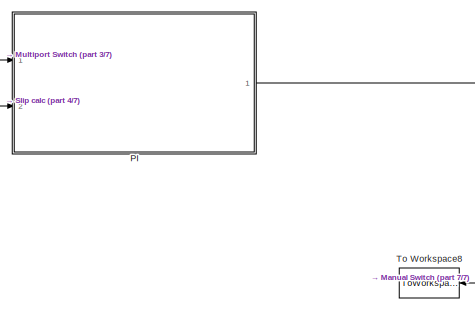
[diagram: root canvas - part 1/7, top right region]
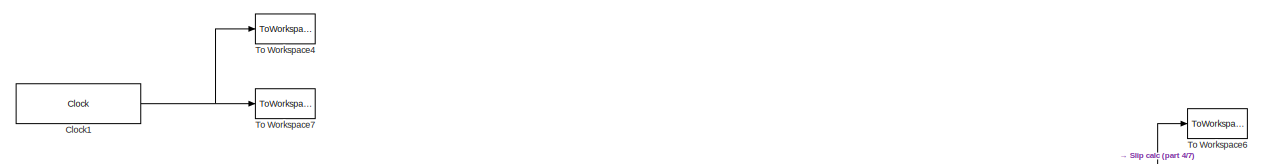
[diagram: root canvas - part 2/7, top center region]
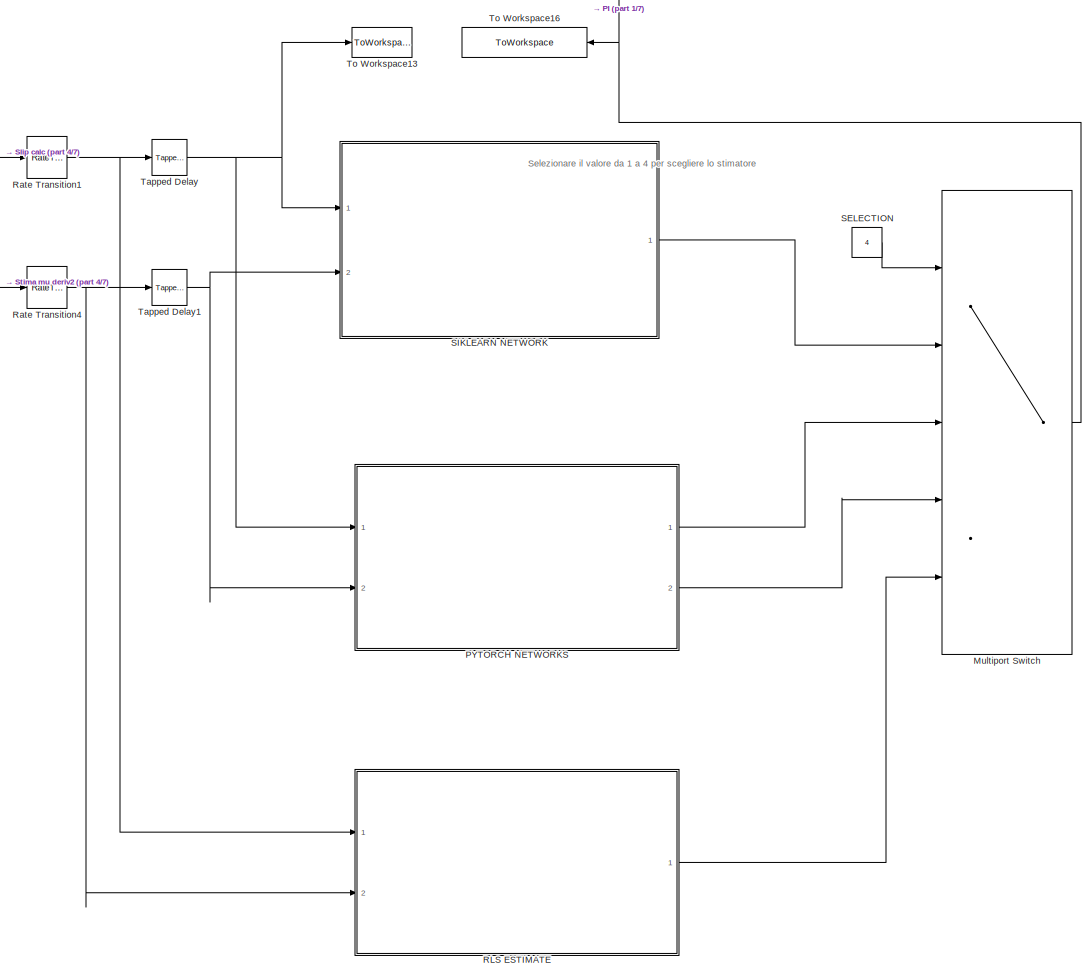
[diagram: root canvas - part 3/7, middle right region]
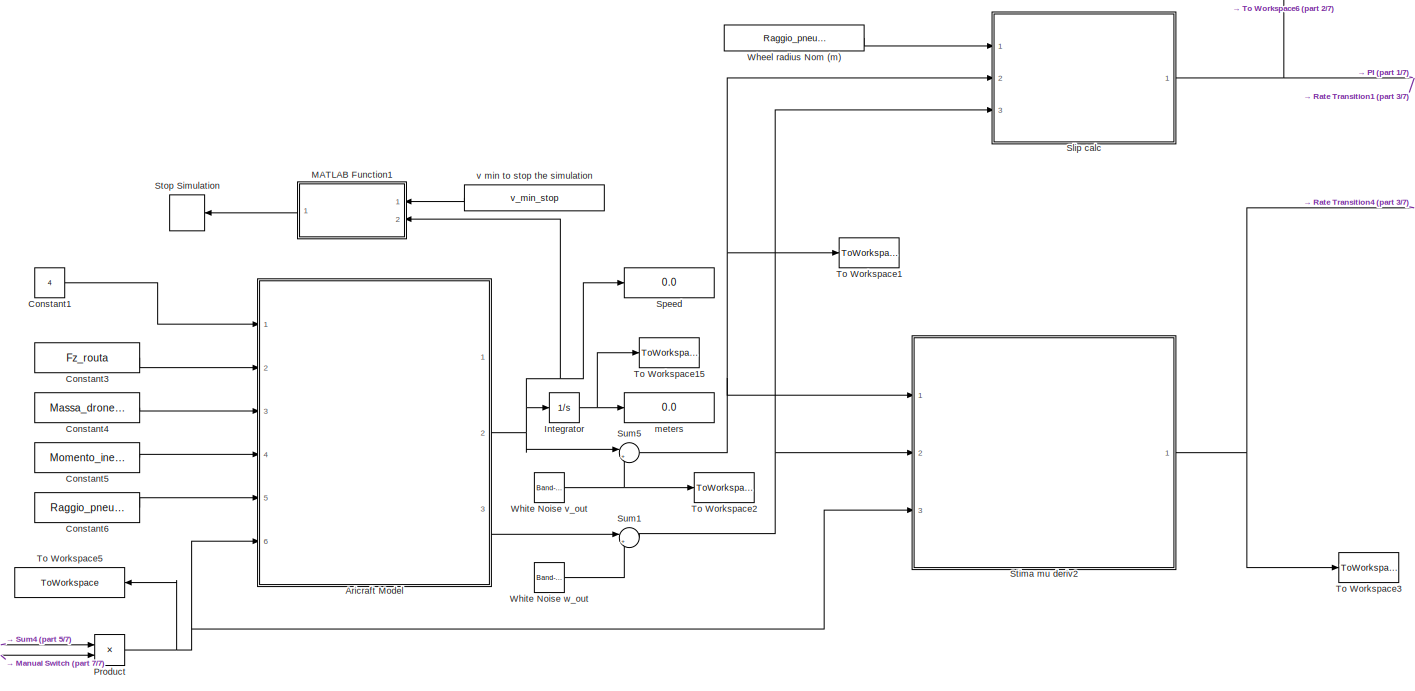
[diagram: root canvas - part 4/7, central region]
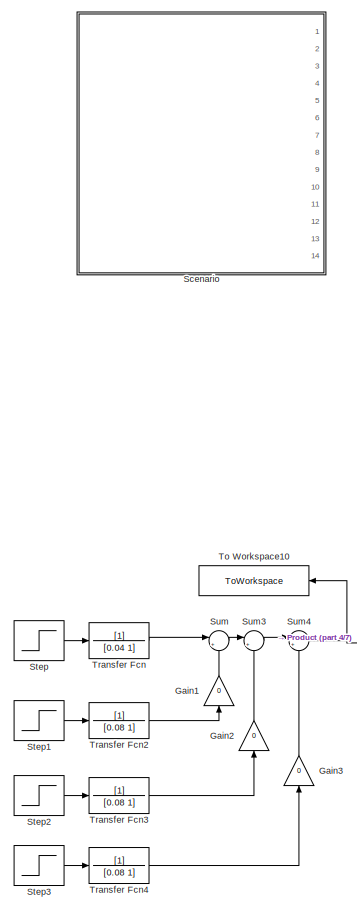
[diagram: root canvas - part 5/7, middle left region]
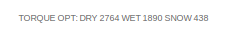
[diagram: root canvas - part 6/7, middle left region]
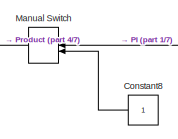
[diagram: root canvas - part 7/7, bottom left region]
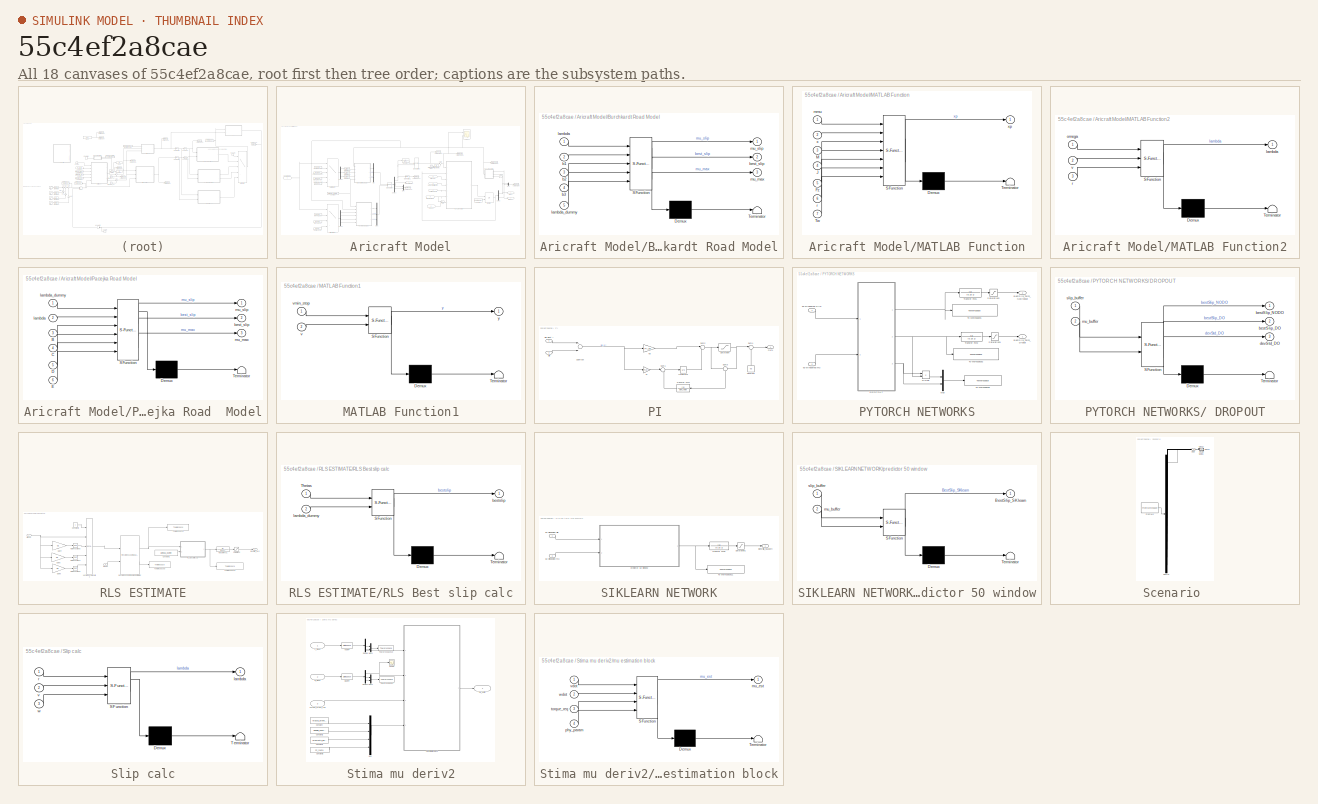
[diagram: thumbnail index - all 18 canvases of the model, root first then tree order]
MODEL slx_55c4ef2a8cae
KIND model
CONFIG AbsTol = auto
CONFIG EnableMultiTasking = on
CONFIG FixedStep = 1e-6
CONFIG InitFcn = clear all\nclose all\nVariables_Journal2022\n
CONFIG MaxStep = auto
CONFIG MinStep = 1e-3
CONFIG PreLoadFcn = if count(py.sys.path,'') == 0\ninsert(py.sys.path,int32(0),'');\nend
CONFIG RelTol = 1e-3
CONFIG SampleTimeConstraint = Unconstrained
CONFIG Solver = VariableStepAuto
CONFIG SolverName = VariableStepAuto
CONFIG StartTime = 0.0
CONFIG StopFcn = %Figures_Test_Pytorch_simulink
CONFIG StopTime = 20
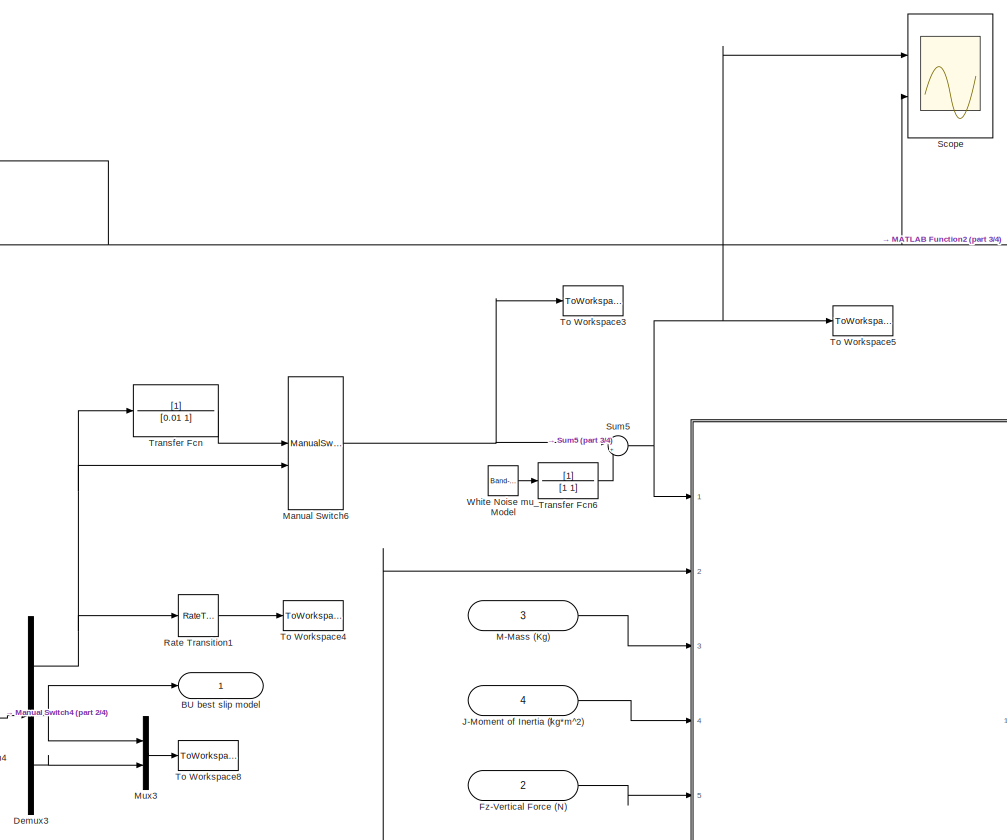
[diagram: Aricraft Model - part 1/4, top center region]
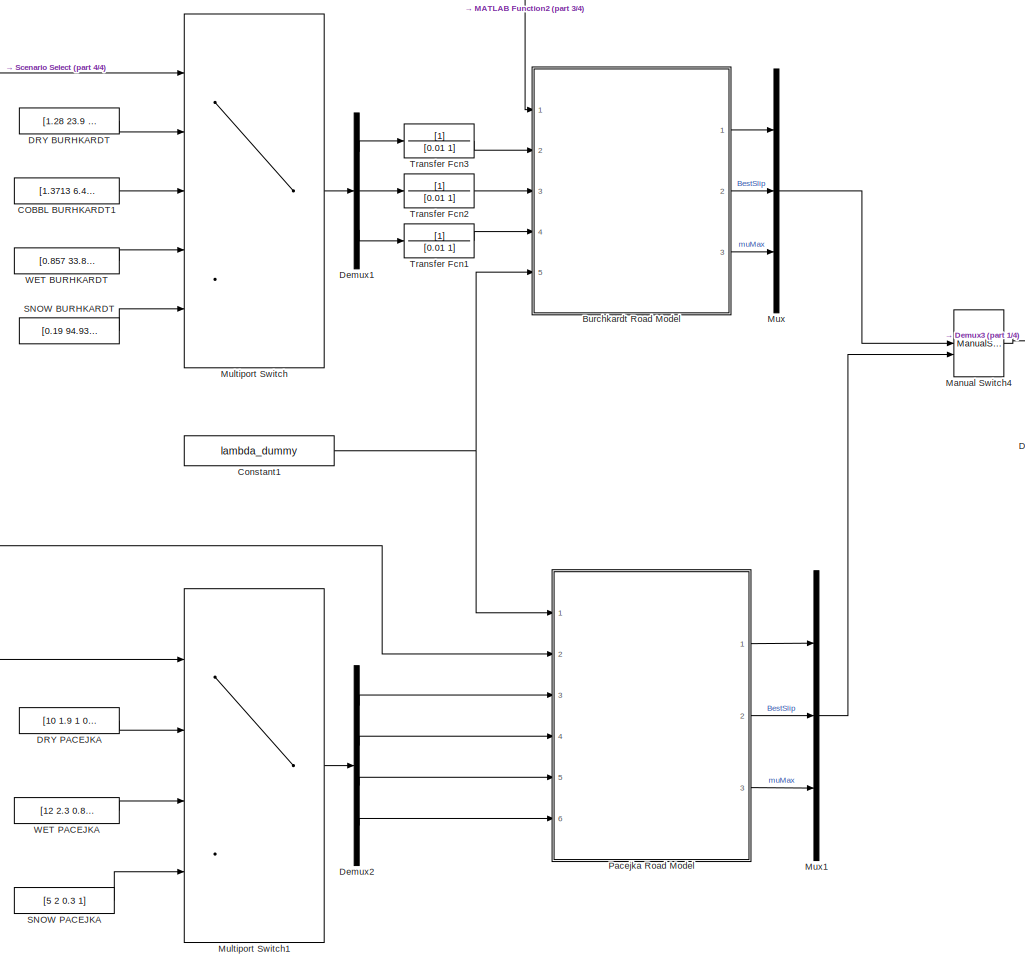
[diagram: Aricraft Model - part 2/4, middle left region]
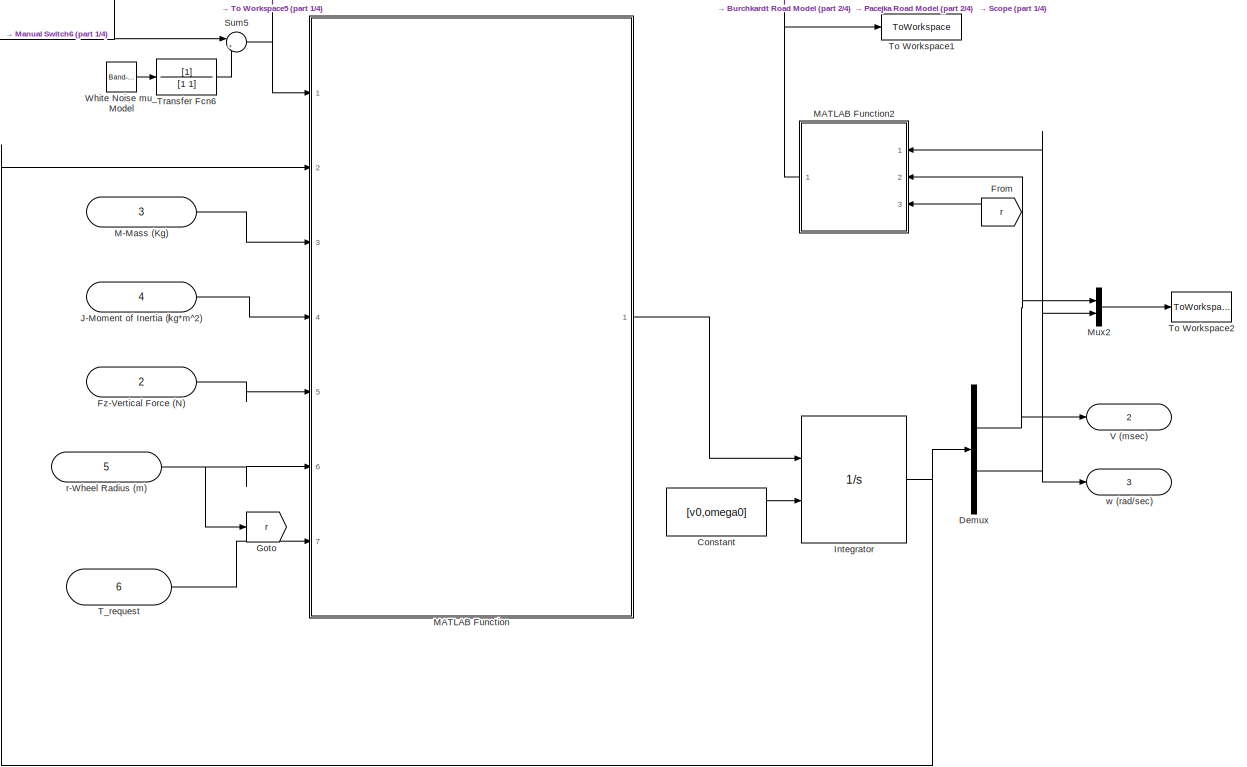
[diagram: Aricraft Model - part 3/4, middle right region]
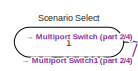
[diagram: Aricraft Model - part 4/4, middle left region]
BLOCK [SubSystem] Aricraft Model
  Ports = [6, 3]
  RequestExecContextInheritance = off
BLOCK [Inport] Aricraft Model/ M-Mass (Kg)
  IconDisplay = Port number
  Port = 3
BLOCK [Outport] Aricraft Model/BU best slip model
  IconDisplay = Port number
BLOCK [SubSystem] Aricraft Model/Burchkardt Road Model
  ErrorFcn = Stateflow.Translate.translate
  PermitHierarchicalResolution = ExplicitOnly
  Ports = [5, 3]
  RequestExecContextInheritance = off
  SFBlockType = MATLAB Function
  TreatAsAtomicUnit = on
BLOCK [Demux] Aricraft Model/Burchkardt Road Model/ Demux 
  Outputs = 1
  Ports = [1, 1]
BLOCK [S-Function] Aricraft Model/Burchkardt Road Model/ SFunction 
  EnableBusSupport = on
  FunctionName = sf_sfun
  PortCounts = [5 4]
  Ports = [5, 4]
  SFcnIsStateOwnerBlock = off
  SFunctionDeploymentMode = off
  Tag = Stateflow S-Function Journal2022 7
BLOCK [Terminator] Aricraft Model/Burchkardt Road Model/ Terminator 
BLOCK [Inport] Aricraft Model/Burchkardt Road Model/b1
  IconDisplay = Port number
  Port = 2
BLOCK [Inport] Aricraft Model/Burchkardt Road Model/b2
  IconDisplay = Port number
  Port = 3
BLOCK [Inport] Aricraft Model/Burchkardt Road Model/b3
  IconDisplay = Port number
  Port = 4
BLOCK [Outport] Aricraft Model/Burchkardt Road Model/best_slip
  IconDisplay = Port number
  Port = 2
BLOCK [Inport] Aricraft Model/Burchkardt Road Model/lambda
  IconDisplay = Port number
BLOCK [Inport] Aricraft Model/Burchkardt Road Model/lambda_dummy
  IconDisplay = Port number
  Port = 5
BLOCK [Outport] Aricraft Model/Burchkardt Road Model/mu_max
  IconDisplay = Port number
  Port = 3
BLOCK [Outport] Aricraft Model/Burchkardt Road Model/mu_slip
  IconDisplay = Port number
BLOCK [Constant] Aricraft Model/COBBL BURHKARDT1
  Value = [1.3713 6.4565 0.6691]
BLOCK [Constant] Aricraft Model/Constant
  Value = [v0,omega0]
BLOCK [Constant] Aricraft Model/Constant1
  Value = lambda_dummy
BLOCK [Constant] Aricraft Model/DRY BURHKARDT
  Value = [1.28 23.9 0.52]
BLOCK [Constant] Aricraft Model/DRY PACEJKA
  Value = [10 1.9 1 0.97]
BLOCK [Demux] Aricraft Model/Demux
  DisplayOption = bar
  Outputs = 2
  Ports = [1, 2]
BLOCK [Demux] Aricraft Model/Demux1
  DisplayOption = bar
  Outputs = 3
  Ports = [1, 3]
BLOCK [Demux] Aricraft Model/Demux2
  DisplayOption = bar
  Ports = [1, 4]
BLOCK [Demux] Aricraft Model/Demux3
  DisplayOption = bar
  Outputs = 3
  Ports = [1, 3]
BLOCK [From] Aricraft Model/From
  GotoTag = r
BLOCK [Inport] Aricraft Model/Fz-Vertical Force (N)
  IconDisplay = Port number
  Port = 2
BLOCK [Goto] Aricraft Model/Goto
  GotoTag = r
BLOCK [Integrator] Aricraft Model/Integrator
  InitialCondition = [v0,omega0]
  InitialConditionSource = external
  LimitOutput = on
  LowerSaturationLimit = 0
  Ports = [2, 1]
BLOCK [Inport] Aricraft Model/J-Moment of Inertia (‎kg*m^2)
  IconDisplay = Port number
  Port = 4
BLOCK [SubSystem] Aricraft Model/MATLAB Function
  ErrorFcn = Stateflow.Translate.translate
  PermitHierarchicalResolution = ExplicitOnly
  Ports = [7, 1]
  RequestExecContextInheritance = off
  SFBlockType = MATLAB Function
  TreatAsAtomicUnit = on
BLOCK [Demux] Aricraft Model/MATLAB Function/ Demux 
  Outputs = 1
  Ports = [1, 1]
BLOCK [S-Function] Aricraft Model/MATLAB Function/ SFunction 
  EnableBusSupport = on
  FunctionName = sf_sfun
  PortCounts = [7 2]
  Ports = [7, 2]
  SFcnIsStateOwnerBlock = off
  SFunctionDeploymentMode = off
  Tag = Stateflow S-Function Journal2022 2
BLOCK [Terminator] Aricraft Model/MATLAB Function/ Terminator 
BLOCK [Inport] Aricraft Model/MATLAB Function/Fz
  IconDisplay = Port number
  Port = 5
BLOCK [Inport] Aricraft Model/MATLAB Function/J
  IconDisplay = Port number
  Port = 4
BLOCK [Inport] Aricraft Model/MATLAB Function/M
  IconDisplay = Port number
  Port = 3
BLOCK [Inport] Aricraft Model/MATLAB Function/Tw
  IconDisplay = Port number
  Port = 7
BLOCK [Inport] Aricraft Model/MATLAB Function/mmu
  IconDisplay = Port number
BLOCK [Inport] Aricraft Model/MATLAB Function/r
  IconDisplay = Port number
  Port = 6
BLOCK [Inport] Aricraft Model/MATLAB Function/x
  IconDisplay = Port number
  Port = 2
BLOCK [Outport] Aricraft Model/MATLAB Function/xp
  IconDisplay = Port number
BLOCK [SubSystem] Aricraft Model/MATLAB Function2
  ErrorFcn = Stateflow.Translate.translate
  PermitHierarchicalResolution = ExplicitOnly
  Ports = [3, 1]
  RequestExecContextInheritance = off
  SFBlockType = MATLAB Function
  TreatAsAtomicUnit = on
BLOCK [Demux] Aricraft Model/MATLAB Function2/ Demux 
  Outputs = 1
  Ports = [1, 1]
BLOCK [S-Function] Aricraft Model/MATLAB Function2/ SFunction 
  EnableBusSupport = on
  FunctionName = sf_sfun
  PortCounts = [3 2]
  Ports = [3, 2]
  SFcnIsStateOwnerBlock = off
  SFunctionDeploymentMode = off
  Tag = Stateflow S-Function Journal2022 9
BLOCK [Terminator] Aricraft Model/MATLAB Function2/ Terminator 
BLOCK [Outport] Aricraft Model/MATLAB Function2/lambda
  IconDisplay = Port number
BLOCK [Inport] Aricraft Model/MATLAB Function2/omega
  IconDisplay = Port number
BLOCK [Inport] Aricraft Model/MATLAB Function2/r
  IconDisplay = Port number
  Port = 3
BLOCK [Inport] Aricraft Model/MATLAB Function2/v
  IconDisplay = Port number
  Port = 2
BLOCK [ManualSwitch] Aricraft Model/Manual Switch4
BLOCK [ManualSwitch] Aricraft Model/Manual Switch6
  CurrentSetting = 0
BLOCK [MultiPortSwitch] Aricraft Model/Multiport Switch
  DataPortIndices = {1,2,3,4}
  DataPortOrder = Specify indices
  DiagnosticForDefault = None
  InputSameDT = off
  Inputs = 4
  Ports = [5, 1]
  SaturateOnIntegerOverflow = off
BLOCK [MultiPortSwitch] Aricraft Model/Multiport Switch1
  DataPortOrder = Specify indices
  DiagnosticForDefault = None
  InputSameDT = off
  Inputs = 4
  Ports = [4, 1]
  SaturateOnIntegerOverflow = off
BLOCK [Mux] Aricraft Model/Mux
  DisplayOption = bar
  Inputs = 3
  Ports = [3, 1]
BLOCK [Mux] Aricraft Model/Mux1
  DisplayOption = bar
  Inputs = 3
  Ports = [3, 1]
BLOCK [Mux] Aricraft Model/Mux2
  DisplayOption = bar
  Inputs = 2
  Ports = [2, 1]
BLOCK [Mux] Aricraft Model/Mux3
  DisplayOption = bar
  Inputs = 2
  Ports = [2, 1]
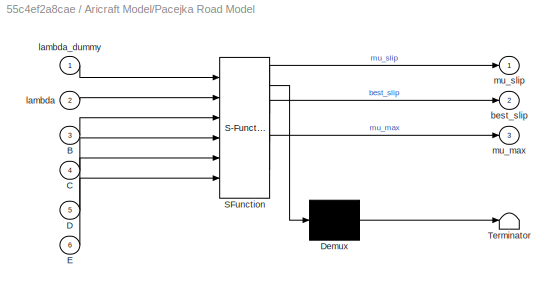
BLOCK [SubSystem] Aricraft Model/Pacejka Road  Model
  ErrorFcn = Stateflow.Translate.translate
  PermitHierarchicalResolution = ExplicitOnly
  Ports = [6, 3]
  RequestExecContextInheritance = off
  SFBlockType = MATLAB Function
  TreatAsAtomicUnit = on
BLOCK [Demux] Aricraft Model/Pacejka Road  Model/ Demux 
  Outputs = 1
  Ports = [1, 1]
BLOCK [S-Function] Aricraft Model/Pacejka Road  Model/ SFunction 
  EnableBusSupport = on
  FunctionName = sf_sfun
  PortCounts = [6 4]
  Ports = [6, 4]
  SFcnIsStateOwnerBlock = off
  SFunctionDeploymentMode = off
  Tag = Stateflow S-Function Journal2022 8
BLOCK [Terminator] Aricraft Model/Pacejka Road  Model/ Terminator 
BLOCK [Inport] Aricraft Model/Pacejka Road  Model/B
  IconDisplay = Port number
  Port = 3
BLOCK [Inport] Aricraft Model/Pacejka Road  Model/C
  IconDisplay = Port number
  Port = 4
BLOCK [Inport] Aricraft Model/Pacejka Road  Model/D
  IconDisplay = Port number
  Port = 5
BLOCK [Inport] Aricraft Model/Pacejka Road  Model/E
  IconDisplay = Port number
  Port = 6
BLOCK [Outport] Aricraft Model/Pacejka Road  Model/best_slip
  IconDisplay = Port number
  Port = 2
BLOCK [Inport] Aricraft Model/Pacejka Road  Model/lambda
  IconDisplay = Port number
  Port = 2
BLOCK [Inport] Aricraft Model/Pacejka Road  Model/lambda_dummy
  IconDisplay = Port number
BLOCK [Outport] Aricraft Model/Pacejka Road  Model/mu_max
  IconDisplay = Port number
  Port = 3
BLOCK [Outport] Aricraft Model/Pacejka Road  Model/mu_slip
  IconDisplay = Port number
BLOCK [RateTransition] Aricraft Model/Rate Transition1
  OutPortSampleTime = ML_sample_time
BLOCK [Constant] Aricraft Model/SNOW BURHKARDT
  Value = [0.19 94.93 0.06]
BLOCK [Constant] Aricraft Model/SNOW PACEJKA
  Value = [5 2 0.3 1]
BLOCK [Inport] Aricraft Model/Scenario Select 
  IconDisplay = Port number
BLOCK [Scope] Aricraft Model/Scope
  Floating = off
  NumInputPorts = 2
  Ports = [2]
  ScopeSpecificationString = Simulink.scopes.TimeScopeBlockCfg('CurrentConfiguration', extmgr.ConfigurationSet(extmgr.Configuration('Core','General UI',true),extmgr.Configuration('Core','Source UI',true),extmgr.Configuration('Sources','WiredSimulink',true),extmgr.Configuration('Visuals','Time Domain',true,'SerializedDisplays',{struct('MinYLimReal','-0.931','MaxYLimReal','1.40308','YLabelReal','','MinYLimMag','0.00000','MaxYLi...<+1374ch>
BLOCK [Sum] Aricraft Model/Sum5
  IconShape = round
  InputSameDT = off
  Inputs = |++
  OutDataTypeStr = Inherit: Inherit via internal rule
  Ports = [2, 1]
  SaturateOnIntegerOverflow = off
BLOCK [Inport] Aricraft Model/T_request
  IconDisplay = Port number
  Port = 6
BLOCK [ToWorkspace] Aricraft Model/To Workspace1
  FixptAsFi = on
  MaxDataPoints = inf
  Ports = [1]
  SampleTime = -1
  Save2DSignal = 3-D array (concatenate along third dimension)
  VariableName = lambda_model
BLOCK [ToWorkspace] Aricraft Model/To Workspace2
  FixptAsFi = on
  MaxDataPoints = inf
  Ports = [1]
  SampleTime = -1
  Save2DSignal = 3-D array (concatenate along third dimension)
  VariableName = speed
BLOCK [ToWorkspace] Aricraft Model/To Workspace3
  FixptAsFi = on
  MaxDataPoints = inf
  Ports = [1]
  SampleTime = -1
  Save2DSignal = 3-D array (concatenate along third dimension)
  VariableName = mu_model1
BLOCK [ToWorkspace] Aricraft Model/To Workspace4
  FixptAsFi = on
  MaxDataPoints = inf
  Ports = [1]
  SampleTime = -1
  Save2DSignal = 3-D array (concatenate along third dimension)
  VariableName = best_slip_GT
BLOCK [ToWorkspace] Aricraft Model/To Workspace5
  FixptAsFi = on
  MaxDataPoints = inf
  Ports = [1]
  SampleTime = -1
  Save2DSignal = 3-D array (concatenate along third dimension)
  VariableName = mu_model
BLOCK [ToWorkspace] Aricraft Model/To Workspace8
  FixptAsFi = on
  MaxDataPoints = inf
  Ports = [1]
  SampleTime = -1
  Save2DSignal = 3-D array (concatenate along third dimension)
  VariableName = MaxT
BLOCK [TransferFcn] Aricraft Model/Transfer Fcn
  Denominator = [0.01 1]
BLOCK [TransferFcn] Aricraft Model/Transfer Fcn1
  Denominator = [0.01 1]
BLOCK [TransferFcn] Aricraft Model/Transfer Fcn2
  Denominator = [0.01 1]
BLOCK [TransferFcn] Aricraft Model/Transfer Fcn3
  Denominator = [0.01 1]
BLOCK [TransferFcn] Aricraft Model/Transfer Fcn6
  Denominator = [1 1]
BLOCK [Outport] Aricraft Model/V (msec)
  IconDisplay = Port number
  Port = 2
BLOCK [Constant] Aricraft Model/WET BURHKARDT
  Value = [0.857 33.822 0.347]
BLOCK [Constant] Aricraft Model/WET PACEJKA
  Value = [12 2.3 0.82 1]
BLOCK [Reference] Aricraft Model/White Noise mu_Model   REF=simulink/Sources/Band-Limited
White Noise
  Ports = [0, 1]
  SourceBlock = simulink/Sources/Band-Limited\nWhite Noise
  SourceProductBaseCode = SL
  SourceProductName = Simulink
  SourceType = Band-Limited White Noise.
BLOCK [Inport] Aricraft Model/r-Wheel Radius (m)
  IconDisplay = Port number
  Port = 5
BLOCK [Outport] Aricraft Model/w (rad//sec)
  IconDisplay = Port number
  Port = 3
BLOCK [Clock] Clock1
  DisplayTime = on
BLOCK [Constant] Constant1
  Value = 4
BLOCK [Constant] Constant3
  Value = Fz_routa
BLOCK [Constant] Constant4
  Value = Massa_drone_eq
BLOCK [Constant] Constant5
  Value = Momento_inerzia
BLOCK [Constant] Constant6
  Value = Raggio_pneumatico
BLOCK [Constant] Constant8
BLOCK [Gain] Gain1
  Gain = 0
  OutDataTypeStr = Inherit: Inherit via internal rule
  ParamDataTypeStr = Inherit: Inherit via internal rule
  SaturateOnIntegerOverflow = off
BLOCK [Gain] Gain2
  Gain = 0
  OutDataTypeStr = Inherit: Inherit via internal rule
  ParamDataTypeStr = Inherit: Inherit via internal rule
  SaturateOnIntegerOverflow = off
BLOCK [Gain] Gain3
  Gain = 0
  OutDataTypeStr = Inherit: Inherit via internal rule
  ParamDataTypeStr = Inherit: Inherit via internal rule
  SaturateOnIntegerOverflow = off
BLOCK [Integrator] Integrator
  Ports = [1, 1]
BLOCK [SubSystem] MATLAB Function1
  ErrorFcn = Stateflow.Translate.translate
  PermitHierarchicalResolution = ExplicitOnly
  Ports = [2, 1]
  RequestExecContextInheritance = off
  SFBlockType = MATLAB Function
  TreatAsAtomicUnit = on
BLOCK [Demux] MATLAB Function1/ Demux 
  Outputs = 1
  Ports = [1, 1]
BLOCK [S-Function] MATLAB Function1/ SFunction 
  EnableBusSupport = on
  FunctionName = sf_sfun
  PortCounts = [2 2]
  Ports = [2, 2]
  SFcnIsStateOwnerBlock = off
  SFunctionDeploymentMode = off
  Tag = Stateflow S-Function Journal2022 5
BLOCK [Terminator] MATLAB Function1/ Terminator 
BLOCK [Inport] MATLAB Function1/v
  IconDisplay = Port number
  Port = 2
BLOCK [Inport] MATLAB Function1/vmin_stop
  IconDisplay = Port number
BLOCK [Outport] MATLAB Function1/y
  IconDisplay = Port number
BLOCK [ManualSwitch] Manual Switch
BLOCK [MultiPortSwitch] Multiport Switch
  DataPortIndices = {1,2,3,4}
  DataPortOrder = Specify indices
  DiagnosticForDefault = None
  InputSameDT = off
  Inputs = 4
  OutDataTypeStr = double
  Ports = [5, 1]
  RndMeth = Round
  SaturateOnIntegerOverflow = off
BLOCK [SubSystem] PI 
  Ports = [2, 1]
  RequestExecContextInheritance = off
BLOCK [Constant] PI /Constant
  Value = 0.5
BLOCK [Integrator] PI /Integrator
  Ports = [1, 1]
BLOCK [Gain] PI /Ki
  Gain = PI_ki
  OutDataTypeStr = Inherit: Inherit via internal rule
  ParamDataTypeStr = Inherit: Inherit via internal rule
  SaturateOnIntegerOverflow = off
BLOCK [Gain] PI /Kp 
  Gain = PI_kp
  OutDataTypeStr = Inherit: Inherit via internal rule
  ParamDataTypeStr = Inherit: Inherit via internal rule
  SaturateOnIntegerOverflow = off
BLOCK [Outport] PI /Out1
  IconDisplay = Port number
BLOCK [Saturate] PI /Saturation
  InputPortMap = u0
  Ports = [1, 1]
BLOCK [Sum] PI /Subtract
  InputSameDT = off
  Inputs = +-
  OutDataTypeStr = Inherit: Inherit via internal rule
  Ports = [2, 1]
  SaturateOnIntegerOverflow = off
BLOCK [Sum] PI /Sum1
  IconShape = round
  InputSameDT = off
  Inputs = |++
  OutDataTypeStr = Inherit: Inherit via internal rule
  Ports = [2, 1]
  SaturateOnIntegerOverflow = off
BLOCK [Sum] PI /Sum2
  IconShape = round
  InputSameDT = off
  Inputs = |++
  OutDataTypeStr = Inherit: Inherit via internal rule
  Ports = [2, 1]
  SaturateOnIntegerOverflow = off
BLOCK [Sum] PI /Sum3
  IconShape = round
  InputSameDT = off
  Inputs = -|+
  OutDataTypeStr = Inherit: Inherit via internal rule
  Ports = [2, 1]
  SaturateOnIntegerOverflow = off
BLOCK [Sum] PI /Sum4
  IconShape = round
  InputSameDT = off
  Inputs = |++
  OutDataTypeStr = Inherit: Inherit via internal rule
  Ports = [2, 1]
  SaturateOnIntegerOverflow = off
BLOCK [TransferFcn] PI /Transfer Fcn1
  Denominator = den_Tdel
BLOCK [Inport] PI /slip 
  IconDisplay = Port number
  Port = 2
BLOCK [Inport] PI /slip Best * 
  IconDisplay = Port number
BLOCK [SubSystem] PYTORCH NETWORKS
  Ports = [2, 2]
  RequestExecContextInheritance = off
BLOCK [SubSystem] PYTORCH NETWORKS/ DROPOUT
  ErrorFcn = Stateflow.Translate.translate
  PermitHierarchicalResolution = ExplicitOnly
  Ports = [2, 3]
  RequestExecContextInheritance = off
  SFBlockType = MATLAB Function
  TreatAsAtomicUnit = on
BLOCK [Demux] PYTORCH NETWORKS/ DROPOUT/ Demux 
  Outputs = 1
  Ports = [1, 1]
BLOCK [S-Function] PYTORCH NETWORKS/ DROPOUT/ SFunction 
  EnableBusSupport = on
  FunctionName = sf_sfun
  PortCounts = [2 4]
  Ports = [2, 4]
  SFcnIsStateOwnerBlock = off
  SFunctionDeploymentMode = off
  Tag = Stateflow S-Function Journal2022 6
BLOCK [Terminator] PYTORCH NETWORKS/ DROPOUT/ Terminator 
BLOCK [Outport] PYTORCH NETWORKS/ DROPOUT/bestSlip_DO
  IconDisplay = Port number
  Port = 2
BLOCK [Outport] PYTORCH NETWORKS/ DROPOUT/bestSlip_NODO
  IconDisplay = Port number
BLOCK [Outport] PYTORCH NETWORKS/ DROPOUT/devStd_DO
  IconDisplay = Port number
  Port = 3
BLOCK [Inport] PYTORCH NETWORKS/ DROPOUT/mu_buffer
  IconDisplay = Port number
  Port = 2
BLOCK [Inport] PYTORCH NETWORKS/ DROPOUT/slip_buffer
  IconDisplay = Port number
BLOCK [Inport] PYTORCH NETWORKS/50 windowed Slip
  IconDisplay = Port number
BLOCK [Inport] PYTORCH NETWORKS/50 windowed mu
  IconDisplay = Port number
  Port = 2
BLOCK [Outport] PYTORCH NETWORKS/BestSlip_Torch_Droput
  IconDisplay = Port number
BLOCK [Outport] PYTORCH NETWORKS/BestSlip_Torch_NoDropout
  IconDisplay = Port number
  Port = 2
BLOCK [Product] PYTORCH NETWORKS/Divide
  InputSameDT = off
  Inputs = */
  OutDataTypeStr = Inherit: Inherit via internal rule
  Ports = [2, 1]
  RndMeth = Floor
  SaturateOnIntegerOverflow = off
BLOCK [Mux] PYTORCH NETWORKS/Mux
  DisplayOption = bar
  Inputs = 2
  Ports = [2, 1]
BLOCK [Saturate] PYTORCH NETWORKS/Saturation1
  InputPortMap = u0
  LowerLimit = 0.001
  Ports = [1, 1]
  UpperLimit = 1
BLOCK [Saturate] PYTORCH NETWORKS/Saturation2
  InputPortMap = u0
  LowerLimit = 0.001
  Ports = [1, 1]
  UpperLimit = 1
BLOCK [ToWorkspace] PYTORCH NETWORKS/To Workspace1
  FixptAsFi = on
  MaxDataPoints = inf
  Ports = [1]
  SampleTime = -1
  Save2DSignal = 3-D array (concatenate along third dimension)
  VariableName = best_slip_Torch_NoDropout
BLOCK [ToWorkspace] PYTORCH NETWORKS/To Workspace2
  FixptAsFi = on
  MaxDataPoints = inf
  Ports = [1]
  SampleTime = -1
  Save2DSignal = 3-D array (concatenate along third dimension)
  VariableName = best_slip_Torch_Dropout
BLOCK [ToWorkspace] PYTORCH NETWORKS/To Workspace9
  FixptAsFi = on
  MaxDataPoints = inf
  Ports = [1]
  SampleTime = -1
  Save2DSignal = 3-D array (concatenate along third dimension)
  VariableName = dev_std_Torch_Dropout
BLOCK [TransferFcn] PYTORCH NETWORKS/Transfer Fcn1
  Denominator = [0.15 1]
BLOCK [TransferFcn] PYTORCH NETWORKS/Transfer Fcn2
  Denominator = [0.15 1]
BLOCK [Product] Product
  InputSameDT = off
  OutDataTypeStr = Inherit: Inherit via internal rule
  Ports = [2, 1]
  RndMeth = Floor
  SaturateOnIntegerOverflow = off
BLOCK [SubSystem] RLS ESTIMATE
  Ports = [2, 1]
  RequestExecContextInheritance = off
BLOCK [Inport] RLS ESTIMATE/ Slip hat
  IconDisplay = Port number
BLOCK [Outport] RLS ESTIMATE/BestSlip_RLS 
  IconDisplay = Port number
BLOCK [Constant] RLS ESTIMATE/Constant1
  Value = lambda_dummy
BLOCK [Constant] RLS ESTIMATE/Constant2
BLOCK [Gain] RLS ESTIMATE/Gain4
  Gain = G1
  OutDataTypeStr = Inherit: Inherit via internal rule
  ParamDataTypeStr = Inherit: Inherit via internal rule
  SaturateOnIntegerOverflow = off
BLOCK [Gain] RLS ESTIMATE/Gain5
  Gain = G2
  OutDataTypeStr = Inherit: Inherit via internal rule
  ParamDataTypeStr = Inherit: Inherit via internal rule
  SaturateOnIntegerOverflow = off
BLOCK [Gain] RLS ESTIMATE/Gain6
  Gain = G3
  OutDataTypeStr = Inherit: Inherit via internal rule
  ParamDataTypeStr = Inherit: Inherit via internal rule
  SaturateOnIntegerOverflow = off
BLOCK [Math] RLS ESTIMATE/Math Function4
  Ports = [1, 1]
BLOCK [Math] RLS ESTIMATE/Math Function5
  Ports = [1, 1]
BLOCK [Math] RLS ESTIMATE/Math Function6
  Ports = [1, 1]
BLOCK [SubSystem] RLS ESTIMATE/RLS Best slip calc
  ErrorFcn = Stateflow.Translate.translate
  PermitHierarchicalResolution = ExplicitOnly
  Ports = [2, 1]
  RequestExecContextInheritance = off
  SFBlockType = MATLAB Function
  TreatAsAtomicUnit = on
BLOCK [Demux] RLS ESTIMATE/RLS Best slip calc/ Demux 
  Outputs = 1
  Ports = [1, 1]
BLOCK [S-Function] RLS ESTIMATE/RLS Best slip calc/ SFunction 
  EnableBusSupport = on
  FunctionName = sf_sfun
  PortCounts = [2 2]
  Ports = [2, 2]
  SFcnIsStateOwnerBlock = off
  SFunctionDeploymentMode = off
  Tag = Stateflow S-Function Journal2022 10
BLOCK [Terminator] RLS ESTIMATE/RLS Best slip calc/ Terminator 
BLOCK [Inport] RLS ESTIMATE/RLS Best slip calc/Thetas
  IconDisplay = Port number
BLOCK [Outport] RLS ESTIMATE/RLS Best slip calc/bestslip
  IconDisplay = Port number
BLOCK [Inport] RLS ESTIMATE/RLS Best slip calc/lambda_dummy
  IconDisplay = Port number
  Port = 2
BLOCK [Reference] RLS ESTIMATE/Recursive Least Squares Estimator  REF=ctrlSharedLib/Recursive Least Squares Estimator
  Ports = [2, 2]
  SourceBlock = ctrlSharedLib/Recursive Least Squares Estimator
  SourceProductBaseCode = CT
  SourceProductName = Control System Toolbox
  SourceType = idEstimatorsRLS
BLOCK [Saturate] RLS ESTIMATE/Saturation2
  InputPortMap = u0
  LowerLimit = 0.001
  Ports = [1, 1]
  UpperLimit = 1
BLOCK [ToWorkspace] RLS ESTIMATE/To Workspace1
  FixptAsFi = on
  MaxDataPoints = inf
  Ports = [1]
  SampleTime = -1
  Save2DSignal = 3-D array (concatenate along third dimension)
  VariableName = RLS_param_estimates
BLOCK [ToWorkspace] RLS ESTIMATE/To Workspace2
  FixptAsFi = on
  MaxDataPoints = inf
  Ports = [1]
  SampleTime = -1
  Save2DSignal = 3-D array (concatenate along third dimension)
  VariableName = best_slip_RLS
BLOCK [ToWorkspace] RLS ESTIMATE/To Workspace9
  FixptAsFi = on
  MaxDataPoints = inf
  Ports = [1]
  SampleTime = -1
  Save2DSignal = 3-D array (concatenate along third dimension)
  VariableName = RLS_covariance
BLOCK [TransferFcn] RLS ESTIMATE/Transfer Fcn1
  Denominator = [0.15 1]
BLOCK [Concatenate] RLS ESTIMATE/Vector Concatenate1
  NumInputs = 5
  Ports = [5, 1]
BLOCK [Inport] RLS ESTIMATE/mu hat
  IconDisplay = Port number
  Port = 2
BLOCK [RateTransition] Rate Transition1
  OutPortSampleTime = ML_sample_time
BLOCK [RateTransition] Rate Transition4
  OutPortSampleTime = ML_sample_time
BLOCK [Constant] SELECTION
  Value = 4
BLOCK [SubSystem] SIKLEARN NETWORK
  Ports = [2, 1]
  RequestExecContextInheritance = off
BLOCK [Inport] SIKLEARN NETWORK/50 windowed Slip
  IconDisplay = Port number
BLOCK [Inport] SIKLEARN NETWORK/50 windowed mu
  IconDisplay = Port number
  Port = 2
BLOCK [Outport] SIKLEARN NETWORK/BestSlip_SKLearn
  IconDisplay = Port number
BLOCK [Saturate] SIKLEARN NETWORK/Saturation1
  InputPortMap = u0
  LowerLimit = 0.001
  Ports = [1, 1]
  UpperLimit = 1
BLOCK [ToWorkspace] SIKLEARN NETWORK/To Workspace11
  FixptAsFi = on
  MaxDataPoints = inf
  Ports = [1]
  SampleTime = -1
  Save2DSignal = 3-D array (concatenate along third dimension)
  VariableName = best_slip_SKlearn
BLOCK [TransferFcn] SIKLEARN NETWORK/Transfer Fcn5
  Denominator = [0.15 1]
BLOCK [SubSystem] SIKLEARN NETWORK/predictor 50 window
  ErrorFcn = Stateflow.Translate.translate
  PermitHierarchicalResolution = ExplicitOnly
  Ports = [2, 1]
  RequestExecContextInheritance = off
  SFBlockType = MATLAB Function
  TreatAsAtomicUnit = on
BLOCK [Demux] SIKLEARN NETWORK/predictor 50 window/ Demux 
  Outputs = 1
  Ports = [1, 1]
BLOCK [S-Function] SIKLEARN NETWORK/predictor 50 window/ SFunction 
  EnableBusSupport = on
  FunctionName = sf_sfun
  PortCounts = [2 2]
  Ports = [2, 2]
  SFcnIsStateOwnerBlock = off
  SFunctionDeploymentMode = off
  Tag = Stateflow S-Function Journal2022 1
BLOCK [Terminator] SIKLEARN NETWORK/predictor 50 window/ Terminator 
BLOCK [Outport] SIKLEARN NETWORK/predictor 50 window/BestSlip_SKlearn
  IconDisplay = Port number
BLOCK [Inport] SIKLEARN NETWORK/predictor 50 window/mu_buffer
  IconDisplay = Port number
  Port = 2
BLOCK [Inport] SIKLEARN NETWORK/predictor 50 window/slip_buffer
  IconDisplay = Port number
BLOCK [SubSystem] Scenario 
  ClipboardFcn = sigbuilder_block('clipboard');
  CloseFcn = sigbuilder_block('close');
  ContinueFcn = sigbuilder_block('continue');
  CopyFcn = sigbuilder_block('copy');
  DeleteFcn = sigbuilder_block('delete');
  LoadFcn = sigbuilder_block('load');
  MaskHideContents = on
  ModelCloseFcn = sigbuilder_block('modelClose');
  NameChangeFcn = sigbuilder_block('namechange');
  OpenFcn = sigbuilder_block('open',[48.75 0 1391.25 690 ]);
  PauseFcn = sigbuilder_block('pause');
  Ports = [0, 14]
  PreSaveFcn = sigbuilder_block('preSave');
  RequestExecContextInheritance = off
  StartFcn = sigbuilder_block('start');
  StopFcn = sigbuilder_block('stop');
  Tag = STV Subsys
BLOCK [Outport] Scenario /DS
  IconDisplay = Port number
  Port = 13
  Tag = STV Outport
BLOCK [Outport] Scenario /DSD
  IconDisplay = Port number
  Tag = STV Outport
BLOCK [Outport] Scenario /DSW
  IconDisplay = Port number
  Port = 9
  Tag = STV Outport
BLOCK [Outport] Scenario /DW
  IconDisplay = Port number
  Port = 14
  Tag = STV Outport
BLOCK [Outport] Scenario /DWD
  IconDisplay = Port number
  Port = 4
  Tag = STV Outport
BLOCK [Outport] Scenario /DWS
  IconDisplay = Port number
  Port = 12
  Tag = STV Outport
BLOCK [Demux] Scenario /Demux
  Outputs = 14
  Ports = [1, 14]
  Tag = STV Demux
BLOCK [FromWorkspace] Scenario /FromWs
  SampleTime = 0
  Tag = STV FromWs
  VariableName = tuvar
  ZeroCross = on
BLOCK [Outport] Scenario /SDS
  IconDisplay = Port number
  Port = 2
  Tag = STV Outport
BLOCK [Outport] Scenario /SDW
  IconDisplay = Port number
  Port = 10
  Tag = STV Outport
BLOCK [Outport] Scenario /SWD
  IconDisplay = Port number
  Port = 7
  Tag = STV Outport
BLOCK [Outport] Scenario /SWS
  IconDisplay = Port number
  Port = 6
  Tag = STV Outport
BLOCK [Outport] Scenario /WDS
  IconDisplay = Port number
  Port = 8
  Tag = STV Outport
BLOCK [Outport] Scenario /WDW
  IconDisplay = Port number
  Port = 3
  Tag = STV Outport
BLOCK [Outport] Scenario /WSD
  IconDisplay = Port number
  Port = 11
  Tag = STV Outport
BLOCK [Outport] Scenario /WSW
  IconDisplay = Port number
  Port = 5
  Tag = STV Outport
BLOCK [SubSystem] Slip calc
  ErrorFcn = Stateflow.Translate.translate
  PermitHierarchicalResolution = ExplicitOnly
  Ports = [3, 1]
  RequestExecContextInheritance = off
  SFBlockType = MATLAB Function
  TreatAsAtomicUnit = on
BLOCK [Demux] Slip calc/ Demux 
  Outputs = 1
  Ports = [1, 1]
BLOCK [S-Function] Slip calc/ SFunction 
  EnableBusSupport = on
  FunctionName = sf_sfun
  PortCounts = [3 2]
  Ports = [3, 2]
  SFcnIsStateOwnerBlock = off
  SFunctionDeploymentMode = off
  Tag = Stateflow S-Function Journal2022 4
BLOCK [Terminator] Slip calc/ Terminator 
BLOCK [Outport] Slip calc/lambda
  IconDisplay = Port number
BLOCK [Inport] Slip calc/r
  IconDisplay = Port number
BLOCK [Inport] Slip calc/v
  IconDisplay = Port number
  Port = 2
BLOCK [Inport] Slip calc/w
  IconDisplay = Port number
  Port = 3
BLOCK [Display] Speed
  Decimation = 1
  Ports = [1]
BLOCK [Step] Step
  After = 3764
  SampleTime = 0
  Time = 0
BLOCK [Step] Step1
  After = -500
  SampleTime = 0
  Time = 2
BLOCK [Step] Step2
  After = -500
  SampleTime = 0
  Time = 4
BLOCK [Step] Step3
  After = -500
  SampleTime = 0
  Time = 6
BLOCK [SubSystem] Stima mu deriv2
  Ports = [3, 1]
  RequestExecContextInheritance = off
BLOCK [Constant] Stima mu deriv2/Constant
  Value = Massa_drone_eq
BLOCK [Constant] Stima mu deriv2/Constant1
  Value = Momento_inerzia
BLOCK [Constant] Stima mu deriv2/Constant2
  Value = Raggio_pneumatico
BLOCK [Constant] Stima mu deriv2/Constant3
  Value = Fz_routa
BLOCK [Demux] Stima mu deriv2/Demux
  DisplayOption = bar
  Outputs = 3
  Ports = [1, 3]
BLOCK [Demux] Stima mu deriv2/Demux1
  DisplayOption = bar
  Outputs = 3
  Ports = [1, 3]
BLOCK [Mux] Stima mu deriv2/Mux
  DisplayOption = bar
  Ports = [4, 1]
BLOCK [Mux] Stima mu deriv2/Mux1
  DisplayOption = bar
  Inputs = 2
  Ports = [2, 1]
BLOCK [Mux] Stima mu deriv2/Mux2
  DisplayOption = bar
  Inputs = 2
  Ports = [2, 1]
BLOCK [Scope] Stima mu deriv2/Scope
  Floating = off
  NumInputPorts = 1
  Ports = [1]
  ScopeSpecificationString = C++SS(StrPVP('Location','[2401, 58, 4801, 1302]'),StrPVP('Open','off'),MxPVP('AxesTitles',53,'struct(''axes1'',''%<SignalLabel>'')'),MxPVP('ScopeGraphics',56,'struct(''FigureColor'',''[0.156862745098039 0.156862745098039 0.156862745098039]'',''AxesColor'',''[0 0 0]'',''AxesTickColor'',''[0.686274509803922 0.686274509803922 0.686274509803922]'',''LineColors'',''[1 1 0;1 0 1;0 1 1;1 0 0;0 1 0;0 0 1]...<+397ch>
BLOCK [ToWorkspace] Stima mu deriv2/To Workspace1
  FixptAsFi = on
  MaxDataPoints = inf
  Ports = [1]
  SampleTime = Sample_time
  Save2DSignal = 3-D array (concatenate along third dimension)
  VariableName = xs_stati_w_der
BLOCK [ToWorkspace] Stima mu deriv2/To Workspace10
  FixptAsFi = on
  MaxDataPoints = inf
  Ports = [1]
  SampleTime = Sample_time
  Save2DSignal = 3-D array (concatenate along third dimension)
  VariableName = xs_stati_v_der
BLOCK [Inport] Stima mu deriv2/Torque_brake_req
  IconDisplay = Port number
  Port = 3
BLOCK [StateSpace] Stima mu deriv2/VdotTF 
  A = v_state_space_A
  B = v_state_space_B
  C = v_state_space_C
  D = v_state_space_D
  InitialCondition = v_state_space_init
  Ports = [1, 1]
BLOCK [SubSystem] Stima mu deriv2/mu estimation block
  ErrorFcn = Stateflow.Translate.translate
  PermitHierarchicalResolution = ExplicitOnly
  Ports = [4, 1]
  RequestExecContextInheritance = off
  SFBlockType = MATLAB Function
  TreatAsAtomicUnit = on
BLOCK [Demux] Stima mu deriv2/mu estimation block/ Demux 
  Outputs = 1
  Ports = [1, 1]
BLOCK [S-Function] Stima mu deriv2/mu estimation block/ SFunction 
  EnableBusSupport = on
  FunctionName = sf_sfun
  PortCounts = [4 2]
  Ports = [4, 2]
  SFcnIsStateOwnerBlock = off
  SFunctionDeploymentMode = off
  Tag = Stateflow S-Function Journal2022 3
BLOCK [Terminator] Stima mu deriv2/mu estimation block/ Terminator 
BLOCK [Outport] Stima mu deriv2/mu estimation block/mu_est
  IconDisplay = Port number
BLOCK [Inport] Stima mu deriv2/mu estimation block/phy_param
  IconDisplay = Port number
  Port = 4
BLOCK [Inport] Stima mu deriv2/mu estimation block/torque_req
  IconDisplay = Port number
  Port = 3
BLOCK [Inport] Stima mu deriv2/mu estimation block/vdot
  IconDisplay = Port number
BLOCK [Inport] Stima mu deriv2/mu estimation block/wdot
  IconDisplay = Port number
  Port = 2
BLOCK [Outport] Stima mu deriv2/mu_estim 
  IconDisplay = Port number
BLOCK [Inport] Stima mu deriv2/v_meas
  IconDisplay = Port number
BLOCK [Inport] Stima mu deriv2/w_meas
  IconDisplay = Port number
  Port = 2
BLOCK [StateSpace] Stima mu deriv2/wdotTF 
  A = w_state_Space_A
  B = w_state_Space_B
  C = w_state_Space_C
  D = w_state_Space_D
  InitialCondition = w_state_space_init
  Ports = [1, 1]
BLOCK [Stop] Stop Simulation
BLOCK [Sum] Sum
  IconShape = round
  InputSameDT = off
  Inputs = |++
  OutDataTypeStr = Inherit: Inherit via internal rule
  Ports = [2, 1]
  SaturateOnIntegerOverflow = off
BLOCK [Sum] Sum1
  IconShape = round
  InputSameDT = off
  Inputs = |++
  OutDataTypeStr = Inherit: Inherit via internal rule
  Ports = [2, 1]
  SaturateOnIntegerOverflow = off
BLOCK [Sum] Sum3
  IconShape = round
  InputSameDT = off
  Inputs = |++
  OutDataTypeStr = Inherit: Inherit via internal rule
  Ports = [2, 1]
  SaturateOnIntegerOverflow = off
BLOCK [Sum] Sum4
  IconShape = round
  InputSameDT = off
  Inputs = |++
  OutDataTypeStr = Inherit: Inherit via internal rule
  Ports = [2, 1]
  SaturateOnIntegerOverflow = off
BLOCK [Sum] Sum5
  IconShape = round
  InputSameDT = off
  Inputs = |++
  OutDataTypeStr = Inherit: Inherit via internal rule
  Ports = [2, 1]
  SaturateOnIntegerOverflow = off
BLOCK [Reference] Tapped Delay  REF=simulink/Discrete/Tapped Delay
  Ports = [1, 1]
  SourceBlock = simulink/Discrete/Tapped Delay
  SourceProductBaseCode = SL
  SourceProductName = Simulink
  SourceType = Tapped Delay Line
BLOCK [Reference] Tapped Delay1  REF=simulink/Discrete/Tapped Delay
  Ports = [1, 1]
  SourceBlock = simulink/Discrete/Tapped Delay
  SourceProductBaseCode = SL
  SourceProductName = Simulink
  SourceType = Tapped Delay Line
BLOCK [ToWorkspace] To Workspace1
  FixptAsFi = on
  MaxDataPoints = inf
  Ports = [1]
  SampleTime = -1
  Save2DSignal = 3-D array (concatenate along third dimension)
  VariableName = V_noise
BLOCK [ToWorkspace] To Workspace10
  FixptAsFi = on
  MaxDataPoints = inf
  Ports = [1]
  SampleTime = -1
  Save2DSignal = 3-D array (concatenate along third dimension)
  VariableName = Torque_Applied
BLOCK [ToWorkspace] To Workspace13
  FixptAsFi = on
  MaxDataPoints = inf
  Ports = [1]
  SampleTime = -1
  Save2DSignal = 3-D array (concatenate along third dimension)
  VariableName = slip_collected
BLOCK [ToWorkspace] To Workspace15
  FixptAsFi = on
  MaxDataPoints = inf
  Ports = [1]
  SampleTime = -1
  Save2DSignal = 3-D array (concatenate along third dimension)
  VariableName = Distance
BLOCK [ToWorkspace] To Workspace16
  FixptAsFi = on
  MaxDataPoints = inf
  Ports = [1]
  SampleTime = -1
  Save2DSignal = 3-D array (concatenate along third dimension)
  VariableName = best_slip_controller_input
BLOCK [ToWorkspace] To Workspace2
  FixptAsFi = on
  MaxDataPoints = inf
  Ports = [1]
  SampleTime = -1
  Save2DSignal = 3-D array (concatenate along third dimension)
  VariableName = noise
BLOCK [ToWorkspace] To Workspace3
  FixptAsFi = on
  MaxDataPoints = inf
  Ports = [1]
  SampleTime = -1
  Save2DSignal = 3-D array (concatenate along third dimension)
  VariableName = mu_hat
BLOCK [ToWorkspace] To Workspace4
  FixptAsFi = on
  MaxDataPoints = inf
  Ports = [1]
  SampleTime = -1
  Save2DSignal = 3-D array (concatenate along third dimension)
  VariableName = t
BLOCK [ToWorkspace] To Workspace5
  FixptAsFi = on
  MaxDataPoints = inf
  Ports = [1]
  SampleTime = -1
  Save2DSignal = 3-D array (concatenate along third dimension)
  VariableName = Torque_req
BLOCK [ToWorkspace] To Workspace6
  FixptAsFi = on
  MaxDataPoints = inf
  Ports = [1]
  SampleTime = -1
  Save2DSignal = 3-D array (concatenate along third dimension)
  VariableName = lambda_hat
BLOCK [ToWorkspace] To Workspace7
  FixptAsFi = on
  MaxDataPoints = inf
  Ports = [1]
  SampleTime = Sample_time
  Save2DSignal = 3-D array (concatenate along third dimension)
  VariableName = t1
BLOCK [ToWorkspace] To Workspace8
  FixptAsFi = on
  MaxDataPoints = inf
  Ports = [1]
  SampleTime = -1
  Save2DSignal = 3-D array (concatenate along third dimension)
  VariableName = control_Tq
BLOCK [TransferFcn] Transfer Fcn
  Denominator = [0.04 1]
BLOCK [TransferFcn] Transfer Fcn2
  Denominator = [0.08 1]
BLOCK [TransferFcn] Transfer Fcn3
  Denominator = [0.08 1]
BLOCK [TransferFcn] Transfer Fcn4
  Denominator = [0.08 1]
BLOCK [Constant] Wheel radius Nom (m)
  Value = Raggio_pneumatico
BLOCK [Reference] White Noise v_out  REF=simulink/Sources/Band-Limited
White Noise
  Ports = [0, 1]
  SourceBlock = simulink/Sources/Band-Limited\nWhite Noise
  SourceProductBaseCode = SL
  SourceProductName = Simulink
  SourceType = Band-Limited White Noise.
BLOCK [Reference] White Noise w_out  REF=simulink/Sources/Band-Limited
White Noise
  Ports = [0, 1]
  SourceBlock = simulink/Sources/Band-Limited\nWhite Noise
  SourceProductBaseCode = SL
  SourceProductName = Simulink
  SourceType = Band-Limited White Noise.
BLOCK [Display] meters
  Decimation = 1
  Ports = [1]
BLOCK [Constant] v min to stop the simulation
  Value = v_min_stop
ANNOTATION (root): Selezionare il valore da 1 a 4 per scegliere lo stimatore
ANNOTATION (root): TORQUE OPT: DRY 2764 WET 1890 SNOW 438
LINE Aricraft Model/ M-Mass (Kg):1 -> Aricraft Model/MATLAB Function:3
LINE Aricraft Model/Burchkardt Road Model:1 -> Aricraft Model/Mux:1
LINE Aricraft Model/Burchkardt Road Model:2 -> Aricraft Model/Mux:2
LINE Aricraft Model/Burchkardt Road Model:3 -> Aricraft Model/Mux:3
LINE Aricraft Model/COBBL BURHKARDT1:1 -> Aricraft Model/Multiport Switch:3
NET Aricraft Model/Constant1:1 -> Aricraft Model/Burchkardt Road Model:5, Aricraft Model/Pacejka Road  Model:1
LINE Aricraft Model/Constant:1 -> Aricraft Model/Integrator:2
LINE Aricraft Model/DRY BURHKARDT:1 -> Aricraft Model/Multiport Switch:2
LINE Aricraft Model/DRY PACEJKA:1 -> Aricraft Model/Multiport Switch1:2
LINE Aricraft Model/Demux1:1 -> Aricraft Model/Transfer Fcn3:1
LINE Aricraft Model/Demux1:2 -> Aricraft Model/Transfer Fcn2:1
LINE Aricraft Model/Demux1:3 -> Aricraft Model/Transfer Fcn1:1
LINE Aricraft Model/Demux2:1 -> Aricraft Model/Pacejka Road  Model:3
LINE Aricraft Model/Demux2:2 -> Aricraft Model/Pacejka Road  Model:4
LINE Aricraft Model/Demux2:3 -> Aricraft Model/Pacejka Road  Model:5
LINE Aricraft Model/Demux2:4 -> Aricraft Model/Pacejka Road  Model:6
NET Aricraft Model/Demux3:1 -> Aricraft Model/Manual Switch6:2, Aricraft Model/Rate Transition1:1, Aricraft Model/Transfer Fcn:1
NET Aricraft Model/Demux3:2 -> Aricraft Model/BU best slip model:1, Aricraft Model/Mux3:1
LINE Aricraft Model/Demux3:3 -> Aricraft Model/Mux3:2
NET Aricraft Model/Demux:1 -> Aricraft Model/MATLAB Function2:2, Aricraft Model/Mux2:1, Aricraft Model/V (msec):1
NET Aricraft Model/Demux:2 -> Aricraft Model/MATLAB Function2:1, Aricraft Model/Mux2:2, Aricraft Model/w (rad//sec):1
LINE Aricraft Model/From:1 -> Aricraft Model/MATLAB Function2:3
LINE Aricraft Model/Fz-Vertical Force (N):1 -> Aricraft Model/MATLAB Function:5
NET Aricraft Model/Integrator:1 -> Aricraft Model/Demux:1, Aricraft Model/MATLAB Function:2
LINE Aricraft Model/J-Moment of Inertia (‎kg*m^2):1 -> Aricraft Model/MATLAB Function:4
NET Aricraft Model/MATLAB Function2:1 -> Aricraft Model/Burchkardt Road Model:1, Aricraft Model/Pacejka Road  Model:2, Aricraft Model/Scope:2, Aricraft Model/To Workspace1:1
LINE Aricraft Model/MATLAB Function:1 -> Aricraft Model/Integrator:1
LINE Aricraft Model/Manual Switch4:1 -> Aricraft Model/Demux3:1
NET Aricraft Model/Manual Switch6:1 -> Aricraft Model/Sum5:1, Aricraft Model/To Workspace3:1
LINE Aricraft Model/Multiport Switch1:1 -> Aricraft Model/Demux2:1
LINE Aricraft Model/Multiport Switch:1 -> Aricraft Model/Demux1:1
LINE Aricraft Model/Mux1:1 -> Aricraft Model/Manual Switch4:2
LINE Aricraft Model/Mux2:1 -> Aricraft Model/To Workspace2:1
LINE Aricraft Model/Mux3:1 -> Aricraft Model/To Workspace8:1
LINE Aricraft Model/Mux:1 -> Aricraft Model/Manual Switch4:1
LINE Aricraft Model/Pacejka Road  Model:1 -> Aricraft Model/Mux1:1
LINE Aricraft Model/Pacejka Road  Model:2 -> Aricraft Model/Mux1:2
LINE Aricraft Model/Pacejka Road  Model:3 -> Aricraft Model/Mux1:3
LINE Aricraft Model/Rate Transition1:1 -> Aricraft Model/To Workspace4:1
LINE Aricraft Model/SNOW BURHKARDT:1 -> Aricraft Model/Multiport Switch:5
LINE Aricraft Model/SNOW PACEJKA:1 -> Aricraft Model/Multiport Switch1:4
NET Aricraft Model/Scenario Select :1 -> Aricraft Model/Multiport Switch1:1, Aricraft Model/Multiport Switch:1
NET Aricraft Model/Sum5:1 -> Aricraft Model/MATLAB Function:1, Aricraft Model/Scope:1, Aricraft Model/To Workspace5:1
LINE Aricraft Model/T_request:1 -> Aricraft Model/MATLAB Function:7
LINE Aricraft Model/Transfer Fcn1:1 -> Aricraft Model/Burchkardt Road Model:4
LINE Aricraft Model/Transfer Fcn2:1 -> Aricraft Model/Burchkardt Road Model:3
LINE Aricraft Model/Transfer Fcn3:1 -> Aricraft Model/Burchkardt Road Model:2
LINE Aricraft Model/Transfer Fcn6:1 -> Aricraft Model/Sum5:2
LINE Aricraft Model/Transfer Fcn:1 -> Aricraft Model/Manual Switch6:1
LINE Aricraft Model/WET BURHKARDT:1 -> Aricraft Model/Multiport Switch:4
LINE Aricraft Model/WET PACEJKA:1 -> Aricraft Model/Multiport Switch1:3
LINE Aricraft Model/White Noise mu_Model :1 -> Aricraft Model/Transfer Fcn6:1
NET Aricraft Model/r-Wheel Radius (m):1 -> Aricraft Model/Goto:1, Aricraft Model/MATLAB Function:6
NET Aricraft Model:2 -> Integrator:1, MATLAB Function1:2, Speed:1, Sum5:1
LINE Aricraft Model:3 -> Sum1:1
NET Clock1:1 -> To Workspace4:1, To Workspace7:1
LINE Constant1:1 -> Aricraft Model:1
LINE Constant3:1 -> Aricraft Model:2
LINE Constant4:1 -> Aricraft Model:3
LINE Constant5:1 -> Aricraft Model:4
LINE Constant6:1 -> Aricraft Model:5
LINE Constant8:1 -> Manual Switch:2
LINE Gain1:1 -> Sum:2
LINE Gain2:1 -> Sum3:2
LINE Gain3:1 -> Sum4:2
NET Integrator:1 -> To Workspace15:1, meters:1
LINE MATLAB Function1:1 -> Stop Simulation:1
LINE Manual Switch:1 -> Product:2
NET Multiport Switch:1 -> PI :1, To Workspace16:1
LINE PI /Constant:1 -> PI /Sum4:2
LINE PI /Integrator:1 -> PI /Sum2:2
LINE PI /Ki:1 -> PI /Sum1:1
LINE PI /Kp :1 -> PI /Sum2:1
NET PI /Saturation:1 -> PI /Sum3:2, PI /Sum4:1
NET PI /Subtract:1 -> PI /Ki:1, PI /Kp :1
LINE PI /Sum1:1 -> PI /Integrator:1
NET PI /Sum2:1 -> PI /Saturation:1, PI /Sum3:1
LINE PI /Sum3:1 -> PI /Transfer Fcn1:1
LINE PI /Sum4:1 -> PI /Out1:1
LINE PI /Transfer Fcn1:1 -> PI /Sum1:2
LINE PI /slip :1 -> PI /Subtract:2
LINE PI /slip Best * :1 -> PI /Subtract:1
NET PI :1 -> Manual Switch:1, To Workspace8:1
NET PYTORCH NETWORKS/ DROPOUT:1 -> PYTORCH NETWORKS/To Workspace1:1, PYTORCH NETWORKS/Transfer Fcn1:1
NET PYTORCH NETWORKS/ DROPOUT:2 -> PYTORCH NETWORKS/Divide:2, PYTORCH NETWORKS/To Workspace2:1, PYTORCH NETWORKS/Transfer Fcn2:1
NET PYTORCH NETWORKS/ DROPOUT:3 -> PYTORCH NETWORKS/Divide:1, PYTORCH NETWORKS/Mux:2
LINE PYTORCH NETWORKS/50 windowed Slip:1 -> PYTORCH NETWORKS/ DROPOUT:1
LINE PYTORCH NETWORKS/50 windowed mu:1 -> PYTORCH NETWORKS/ DROPOUT:2
LINE PYTORCH NETWORKS/Divide:1 -> PYTORCH NETWORKS/Mux:1
LINE PYTORCH NETWORKS/Mux:1 -> PYTORCH NETWORKS/To Workspace9:1
LINE PYTORCH NETWORKS/Saturation1:1 -> PYTORCH NETWORKS/BestSlip_Torch_Droput:1
LINE PYTORCH NETWORKS/Saturation2:1 -> PYTORCH NETWORKS/BestSlip_Torch_NoDropout:1
LINE PYTORCH NETWORKS/Transfer Fcn1:1 -> PYTORCH NETWORKS/Saturation2:1
LINE PYTORCH NETWORKS/Transfer Fcn2:1 -> PYTORCH NETWORKS/Saturation1:1
LINE PYTORCH NETWORKS:1 -> Multiport Switch:3
LINE PYTORCH NETWORKS:2 -> Multiport Switch:4
NET Product:1 -> Aricraft Model:6, Stima mu deriv2:3, To Workspace5:1
NET RLS ESTIMATE/ Slip hat:1 -> RLS ESTIMATE/Gain4:1, RLS ESTIMATE/Gain5:1, RLS ESTIMATE/Gain6:1, RLS ESTIMATE/Vector Concatenate1:2
LINE RLS ESTIMATE/Constant1:1 -> RLS ESTIMATE/RLS Best slip calc:2
LINE RLS ESTIMATE/Constant2:1 -> RLS ESTIMATE/Vector Concatenate1:1
LINE RLS ESTIMATE/Gain4:1 -> RLS ESTIMATE/Math Function5:1
LINE RLS ESTIMATE/Gain5:1 -> RLS ESTIMATE/Math Function4:1
LINE RLS ESTIMATE/Gain6:1 -> RLS ESTIMATE/Math Function6:1
LINE RLS ESTIMATE/Math Function4:1 -> RLS ESTIMATE/Vector Concatenate1:4
LINE RLS ESTIMATE/Math Function5:1 -> RLS ESTIMATE/Vector Concatenate1:3
LINE RLS ESTIMATE/Math Function6:1 -> RLS ESTIMATE/Vector Concatenate1:5
NET RLS ESTIMATE/RLS Best slip calc:1 -> RLS ESTIMATE/To Workspace2:1, RLS ESTIMATE/Transfer Fcn1:1
NET RLS ESTIMATE/Recursive Least Squares Estimator:1 -> RLS ESTIMATE/RLS Best slip calc:1, RLS ESTIMATE/To Workspace1:1
LINE RLS ESTIMATE/Recursive Least Squares Estimator:2 -> RLS ESTIMATE/To Workspace9:1
LINE RLS ESTIMATE/Saturation2:1 -> RLS ESTIMATE/BestSlip_RLS :1
LINE RLS ESTIMATE/Transfer Fcn1:1 -> RLS ESTIMATE/Saturation2:1
LINE RLS ESTIMATE/Vector Concatenate1:1 -> RLS ESTIMATE/Recursive Least Squares Estimator:1
LINE RLS ESTIMATE/mu hat:1 -> RLS ESTIMATE/Recursive Least Squares Estimator:2
LINE RLS ESTIMATE:1 -> Multiport Switch:5
NET Rate Transition1:1 -> RLS ESTIMATE:1, Tapped Delay:1
NET Rate Transition4:1 -> RLS ESTIMATE:2, Tapped Delay1:1
LINE SELECTION:1 -> Multiport Switch:1
LINE SIKLEARN NETWORK/50 windowed Slip:1 -> SIKLEARN NETWORK/predictor 50 window:1
LINE SIKLEARN NETWORK/50 windowed mu:1 -> SIKLEARN NETWORK/predictor 50 window:2
LINE SIKLEARN NETWORK/Saturation1:1 -> SIKLEARN NETWORK/BestSlip_SKLearn:1
LINE SIKLEARN NETWORK/Transfer Fcn5:1 -> SIKLEARN NETWORK/Saturation1:1
NET SIKLEARN NETWORK/predictor 50 window:1 -> SIKLEARN NETWORK/To Workspace11:1, SIKLEARN NETWORK/Transfer Fcn5:1
LINE SIKLEARN NETWORK:1 -> Multiport Switch:2
NET Slip calc:1 -> PI :2, Rate Transition1:1, To Workspace6:1
LINE Step1:1 -> Transfer Fcn2:1
LINE Step2:1 -> Transfer Fcn3:1
LINE Step3:1 -> Transfer Fcn4:1
LINE Step:1 -> Transfer Fcn:1
LINE Stima mu deriv2/Constant1:1 -> Stima mu deriv2/Mux:3
LINE Stima mu deriv2/Constant2:1 -> Stima mu deriv2/Mux:2
LINE Stima mu deriv2/Constant3:1 -> Stima mu deriv2/Mux:4
LINE Stima mu deriv2/Constant:1 -> Stima mu deriv2/Mux:1
NET Stima mu deriv2/Demux1:1 -> Stima mu deriv2/Scope:1, Stima mu deriv2/mu estimation block:2
LINE Stima mu deriv2/Demux1:2 -> Stima mu deriv2/Mux2:1
LINE Stima mu deriv2/Demux1:3 -> Stima mu deriv2/Mux2:2
LINE Stima mu deriv2/Demux:1 -> Stima mu deriv2/mu estimation block:1
LINE Stima mu deriv2/Demux:2 -> Stima mu deriv2/Mux1:1
LINE Stima mu deriv2/Demux:3 -> Stima mu deriv2/Mux1:2
LINE Stima mu deriv2/Mux1:1 -> Stima mu deriv2/To Workspace10:1
LINE Stima mu deriv2/Mux2:1 -> Stima mu deriv2/To Workspace1:1
LINE Stima mu deriv2/Mux:1 -> Stima mu deriv2/mu estimation block:4
LINE Stima mu deriv2/Torque_brake_req:1 -> Stima mu deriv2/mu estimation block:3
LINE Stima mu deriv2/VdotTF :1 -> Stima mu deriv2/Demux:1
LINE Stima mu deriv2/mu estimation block:1 -> Stima mu deriv2/mu_estim :1
LINE Stima mu deriv2/v_meas:1 -> Stima mu deriv2/VdotTF :1
LINE Stima mu deriv2/w_meas:1 -> Stima mu deriv2/wdotTF :1
LINE Stima mu deriv2/wdotTF :1 -> Stima mu deriv2/Demux1:1
NET Stima mu deriv2:1 -> Rate Transition4:1, To Workspace3:1
NET Sum1:1 -> Slip calc:3, Stima mu deriv2:2
LINE Sum3:1 -> Sum4:1
NET Sum4:1 -> Product:1, To Workspace10:1
NET Sum5:1 -> Slip calc:2, Stima mu deriv2:1, To Workspace1:1
LINE Sum:1 -> Sum3:1
NET Tapped Delay1:1 -> PYTORCH NETWORKS:2, SIKLEARN NETWORK:2
NET Tapped Delay:1 -> PYTORCH NETWORKS:1, SIKLEARN NETWORK:1, To Workspace13:1
LINE Transfer Fcn2:1 -> Gain1:1
LINE Transfer Fcn3:1 -> Gain2:1
LINE Transfer Fcn4:1 -> Gain3:1
LINE Transfer Fcn:1 -> Sum:1
LINE Wheel radius Nom (m):1 -> Slip calc:1
NET White Noise v_out:1 -> Sum5:2, To Workspace2:1
LINE White Noise w_out:1 -> Sum1:2
LINE v min to stop the simulation:1 -> MATLAB Function1:1
note: NET lines group one-source signal fan-out (src -> all destinations, sorted); 1:1 wires keep LINE
CHART SIKLEARN NETWORK/predictor 50 window states=1 transitions=1
  STATE_LABEL 'eML_blk_kernel()'
  STATE_LABEL "SCRIPT:\nfunction BestSlip_SKlearn= fcn(slip_buffer, mu_buffer)\n%#codegen\n\ncoder.extrinsic('py.wrapper_e86eb65e_MLPR_c50e1006.predict')\ncoder.extrinsic('py.numpy.array')\nslip = slip_buffer;\nmu = mu_buffer;\nrow_dataset = reshape([slip mu]',[],1);\nnpA = py.numpy.array(row_dataset(:).');\n\nBestSlip_SKlearn = 0.0;\n\nBestSlip_SKlearn = py.wrapper_e86eb65e_MLPR_c50e1006.predict([npA]);\n\n\n\n\n\n"
CHART Aricraft Model/MATLAB Function states=1 transitions=1
  STATE_LABEL 'eML_blk_kernel()'
  STATE_LABEL 'SCRIPT:\nfunction xp = fcn(mmu,x,M,J,Fz,r,Tw)\n\nv=x(1);\nomega=x(2);\n\nvp=-mmu*Fz/M;\n\nomegap=(r*mmu*Fz-Tw)/J;\n\nlambda=(v-omega*r)/v;\n\nxp=[vp,omegap];\n\n'
CHART Stima mu deriv2/mu estimation block states=1 transitions=1
  STATE_LABEL 'eML_blk_kernel()'
  STATE_LABEL 'SCRIPT:\nfunction mu_est  = fcn(vdot, wdot, torque_req, phy_param)\n\n%Nominal values loaded from file "Variables_Values -> phy_param muxed port"\n\nM_vehicle = phy_param(1) ;      % Mass of aircraft(Kg) \nr =  phy_param(2)        ;      % radius of wheel (m)\nJ = phy_param(3)         ;      % Moment of Inertia of wheels (Kg * m^2) \nFz = phy_param(4)        ;      % Normal force on  wheels (Newton)\n\n%Mea...<+162ch>'
CHART Slip calc states=1 transitions=1
  STATE_LABEL 'eML_blk_kernel()'
  STATE_LABEL 'SCRIPT:\nfunction lambda = fcn(r, v, w)\n% longitudinal slip calc\nlambda = (v-w*r)/v ;'
CHART MATLAB Function1 states=1 transitions=1
  STATE_LABEL 'eML_blk_kernel()'
  STATE_LABEL 'SCRIPT:\nfunction y = fcn(vmin_stop, v)\n%\nif v < vmin_stop\n    \n   y = 1;\n   \nelse\n    y= 0;\n\nend\nend'
CHART PYTORCH NETWORKS/ DROPOUT states=1 transitions=1
  STATE_LABEL 'eML_blk_kernel()'
  STATE_LABEL "SCRIPT:\nfunction [bestSlip_NODO ,bestSlip_DO, devStd_DO] = fcn(slip_buffer, mu_buffer)\n%#codegen\n\ncoder.extrinsic('py.wrapper_Pytorch.predict')\ncoder.extrinsic('py.numpy.array')\nslip = slip_buffer;\nmu = mu_buffer;\nrow_dataset = reshape([slip mu]',[],1);\nnpA = py.numpy.array(row_dataset(:).');\nbestSlip_NODO = 0.0;\nbestSlip_DO = 0.0;\ndevStd_DO = 0.0;\nout = double(py.wrapper_Pytorch.predict([npA]));\n...<+71ch>"
CHART Aricraft Model/Burchkardt Road Model states=1 transitions=1
  STATE_LABEL 'eML_blk_kernel()'
  STATE_LABEL 'SCRIPT:\nfunction [ mu_slip, best_slip,mu_max]= fcn(lambda,b1, b2, b3, lambda_dummy )\n%#codegen\n  \n\n    mu_funct = [b1*(1-exp(-lambda_dummy*b2))-lambda_dummy*b3];\n    [~, idx]= max(mu_funct);\n\n    best_slip = lambda_dummy(idx);\n    mu_max =  max(mu_funct);\n    \n    mu_slip =  b1*(1-exp(-lambda*b2))-lambda*b3;\n    \n   \n  \nend'
CHART Aricraft Model/Pacejka Road  Model states=1 transitions=1
  STATE_LABEL 'eML_blk_kernel()'
  STATE_LABEL 'SCRIPT:\nfunction [mu_slip, best_slip,mu_max]= fcn(lambda_dummy,lambda,B,C,D,E)\n% the tyre Model Provide a steady-state characteristic function, Fx=f(lambda,Fz)\n% the longitudinal force Fx on the tire, based on:\n% - Vertical load: Fz\n% - Wheel slip: lambda\n    \n    fx_funct = D*sin(C*atan(B*lambda_dummy-E*(B*lambda_dummy-atan(B*lambda_dummy))));\n    [~, idx]= max(fx_funct);\n    best_slip = lambda_d...<+112ch>'
CHART Aricraft Model/MATLAB Function2 states=1 transitions=1
  STATE_LABEL 'eML_blk_kernel()'
  STATE_LABEL 'SCRIPT:\nfunction lambda = fcn(omega,v, r)\n\nlambda=(v-omega*r)/v;\n\n'
CHART RLS ESTIMATE/RLS Best slip calc states=1 transitions=1
  STATE_LABEL 'eML_blk_kernel()'
  STATE_LABEL 'SCRIPT:\nfunction bestslip = fcn(Thetas, lambda_dummy)\n\n\nmu_funct = Thetas(1)+ Thetas(2)*lambda_dummy + Thetas(3)*exp(-4.99*lambda_dummy)+ ...\n    Thetas(4)*exp(-18.43*lambda_dummy) + Thetas(5)*exp(-65.62*lambda_dummy);\n    [~, idx]= max(mu_funct);\n    \nbestslip = lambda_dummy(idx);'
